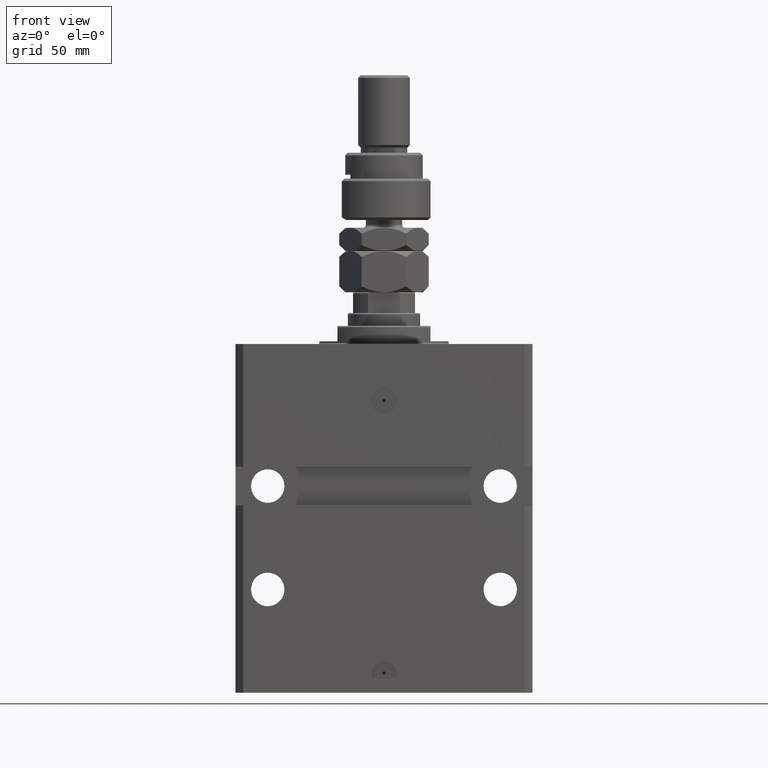
[diagram: clean part render]
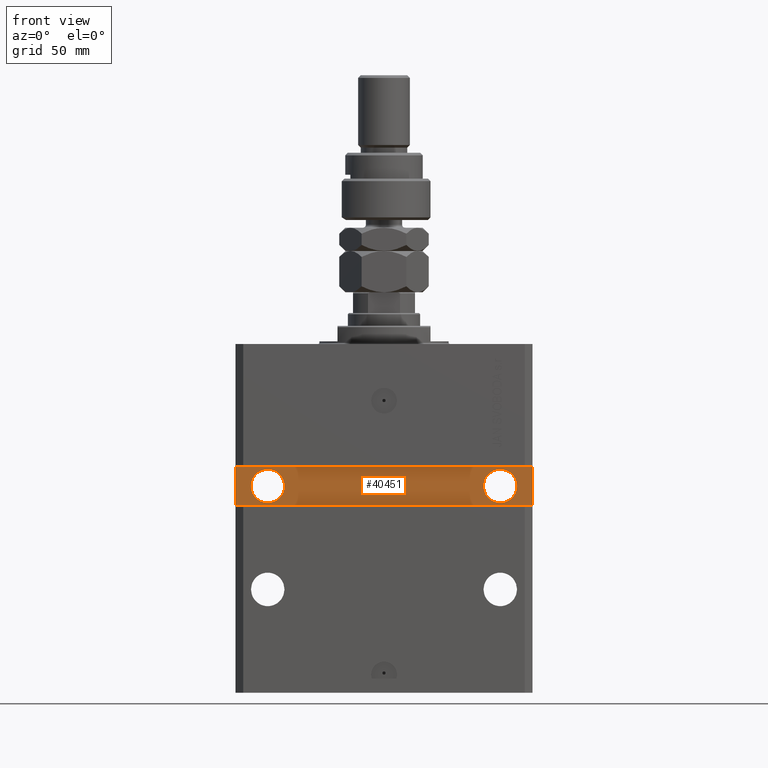
[diagram: same view with one face highlighted and labeled with its STEP entity id]
A machine part, front view. The second image highlights one B-rep face of the part: STEP entity #40451.
In plain terms, the highlighted planar face has unit normal (0, -1, 0).
Its self-contained STEP definition (entity closure, byte-faithful):
#926 = CARTESIAN_POINT ( 'NONE',  ( 57.50000000000000711, -39.99999999999998579, -62.49999999999999289 ) ) ;
#949 = AXIS2_PLACEMENT_3D ( 'NONE', #42046, #4856, #46024 ) ;
#957 = CARTESIAN_POINT ( 'NONE',  ( 38.50000000000001421, -39.99999999999999289, -55.00000000000000000 ) ) ;
#1121 = PLANE ( 'NONE',  #949 ) ;
#1801 = DIRECTION ( 'NONE',  ( 0.000000000000000000, 0.000000000000000000, -1.000000000000000000 ) ) ;
#2155 = VECTOR ( 'NONE', #1801, 1000.000000000000000 ) ;
#2756 = CIRCLE ( 'NONE', #12083, 6.499999999999999112 ) ;
#3078 = AXIS2_PLACEMENT_3D ( 'NONE', #16313, #12349, #41310 ) ;
#3589 = ORIENTED_EDGE ( 'NONE', *, *, #9337, .T. ) ;
#4856 = DIRECTION ( 'NONE',  ( 1.206764157201257045E-16, -1.000000000000000000, 0.000000000000000000 ) ) ;
#5056 = EDGE_CURVE ( 'NONE', #26156, #13375, #23292, .T. ) ;
#5169 = LINE ( 'NONE', #926, #37608 ) ;
#5172 = VECTOR ( 'NONE', #16002, 1000.000000000000000 ) ;
#5740 = CARTESIAN_POINT ( 'NONE',  ( 51.50000000000001421, -39.99999999999999289, -55.00000000000000000 ) ) ;
#6996 = EDGE_CURVE ( 'NONE', #29725, #29697, #47995, .T. ) ;
#7050 = EDGE_CURVE ( 'NONE', #25292, #14015, #9256, .T. ) ;
#8570 = FACE_BOUND ( 'NONE', #13674, .T. ) ;
#8654 = EDGE_CURVE ( 'NONE', #29697, #29725, #9009, .T. ) ;
#8932 = VECTOR ( 'NONE', #20649, 1000.000000000000000 ) ;
#9009 = CIRCLE ( 'NONE', #3078, 6.499999999999999112 ) ;
#9256 = LINE ( 'NONE', #10302, #2155 ) ;
#9337 = EDGE_CURVE ( 'NONE', #11421, #25292, #45094, .T. ) ;
#9779 = DIRECTION ( 'NONE',  ( 7.680174481697266334E-17, -1.000000000000000000, 1.232595164407830946E-32 ) ) ;
#10302 = CARTESIAN_POINT ( 'NONE',  ( -57.50000000000000711, -40.00000000000000000, -47.50000000000000711 ) ) ;
#11421 = VERTEX_POINT ( 'NONE', #15107 ) ;
#12016 = CARTESIAN_POINT ( 'NONE',  ( -44.99999999999998579, -40.00000000000000000, -55.00000000000001421 ) ) ;
#12083 = AXIS2_PLACEMENT_3D ( 'NONE', #12016, #24521, #43931 ) ;
#12349 = DIRECTION ( 'NONE',  ( 7.680174481697266334E-17, -1.000000000000000000, 1.232595164407830946E-32 ) ) ;
#12557 = LINE ( 'NONE', #25051, #5172 ) ;
#13233 = EDGE_CURVE ( 'NONE', #13375, #26156, #2756, .T. ) ;
#13375 = VERTEX_POINT ( 'NONE', #18359 ) ;
#13674 = EDGE_LOOP ( 'NONE', ( #16509, #48251 ) ) ;
#13959 = EDGE_CURVE ( 'NONE', #14015, #49946, #12557, .T. ) ;
#14015 = VERTEX_POINT ( 'NONE', #21842 ) ;
#14264 = DIRECTION ( 'NONE',  ( 1.101411730780568590E-16, -1.000000000000000000, 0.000000000000000000 ) ) ;
#14281 = CARTESIAN_POINT ( 'NONE',  ( 45.00000000000001421, -39.99999999999999289, -55.00000000000000000 ) ) ;
#15107 = CARTESIAN_POINT ( 'NONE',  ( 57.50000000000000711, -39.99999999999998579, -47.49999999999998579 ) ) ;
#15645 = AXIS2_PLACEMENT_3D ( 'NONE', #31284, #14264, #19579 ) ;
#16002 = DIRECTION ( 'NONE',  ( 1.000000000000000000, 1.206764157201257045E-16, 6.033820786006285224E-17 ) ) ;
#16312 = ORIENTED_EDGE ( 'NONE', *, *, #18428, .T. ) ;
#16313 = CARTESIAN_POINT ( 'NONE',  ( 45.00000000000001421, -39.99999999999999289, -55.00000000000000000 ) ) ;
#16509 = ORIENTED_EDGE ( 'NONE', *, *, #13233, .F. ) ;
#18359 = CARTESIAN_POINT ( 'NONE',  ( -38.49999999999998579, -40.00000000000000000, -55.00000000000001421 ) ) ;
#18428 = EDGE_CURVE ( 'NONE', #49946, #11421, #5169, .T. ) ;
#19579 = DIRECTION ( 'NONE',  ( 1.000000000000000000, 0.000000000000000000, 0.000000000000000000 ) ) ;
#20649 = DIRECTION ( 'NONE',  ( -1.000000000000000000, -1.206764157201257045E-16, -1.810146235801885814E-16 ) ) ;
#21318 = ORIENTED_EDGE ( 'NONE', *, *, #6996, .F. ) ;
#21842 = CARTESIAN_POINT ( 'NONE',  ( -57.50000000000000711, -40.00000000000000000, -62.50000000000000000 ) ) ;
#22106 = ORIENTED_EDGE ( 'NONE', *, *, #13959, .T. ) ;
#23292 = CIRCLE ( 'NONE', #15645, 6.499999999999999112 ) ;
#24521 = DIRECTION ( 'NONE',  ( 1.101411730780568590E-16, -1.000000000000000000, 0.000000000000000000 ) ) ;
#25051 = CARTESIAN_POINT ( 'NONE',  ( -57.50000000000000711, -40.00000000000000000, -62.50000000000000000 ) ) ;
#25070 = FACE_OUTER_BOUND ( 'NONE', #28058, .T. ) ;
#25082 = AXIS2_PLACEMENT_3D ( 'NONE', #14281, #9779, #25745 ) ;
#25292 = VERTEX_POINT ( 'NONE', #44761 ) ;
#25646 = DIRECTION ( 'NONE',  ( 0.000000000000000000, 0.000000000000000000, 1.000000000000000000 ) ) ;
#25745 = DIRECTION ( 'NONE',  ( 1.000000000000000000, 0.000000000000000000, 0.000000000000000000 ) ) ;
#26156 = VERTEX_POINT ( 'NONE', #33200 ) ;
#27228 = ORIENTED_EDGE ( 'NONE', *, *, #7050, .T. ) ;
#28058 = EDGE_LOOP ( 'NONE', ( #22106, #16312, #3589, #27228 ) ) ;
#28106 = CARTESIAN_POINT ( 'NONE',  ( 57.50000000000000711, -39.99999999999998579, -47.49999999999998579 ) ) ;
#29697 = VERTEX_POINT ( 'NONE', #957 ) ;
#29725 = VERTEX_POINT ( 'NONE', #5740 ) ;
#29812 = FACE_BOUND ( 'NONE', #37185, .T. ) ;
#30137 = CARTESIAN_POINT ( 'NONE',  ( 57.50000000000000711, -39.99999999999998579, -62.49999999999999289 ) ) ;
#31284 = CARTESIAN_POINT ( 'NONE',  ( -44.99999999999998579, -40.00000000000000000, -55.00000000000001421 ) ) ;
#32998 = ORIENTED_EDGE ( 'NONE', *, *, #8654, .F. ) ;
#33200 = CARTESIAN_POINT ( 'NONE',  ( -51.49999999999998579, -40.00000000000000000, -55.00000000000001421 ) ) ;
#37185 = EDGE_LOOP ( 'NONE', ( #21318, #32998 ) ) ;
#37608 = VECTOR ( 'NONE', #25646, 1000.000000000000000 ) ;
#40451 = ADVANCED_FACE ( 'NONE', ( #29812, #8570, #25070 ), #1121, .T. ) ;
#41310 = DIRECTION ( 'NONE',  ( 1.000000000000000000, 0.000000000000000000, 0.000000000000000000 ) ) ;
#42046 = CARTESIAN_POINT ( 'NONE',  ( 4.842396851142260860E-15, -39.99999999999999289, 0.000000000000000000 ) ) ;
#43931 = DIRECTION ( 'NONE',  ( 1.000000000000000000, 0.000000000000000000, 0.000000000000000000 ) ) ;
#44761 = CARTESIAN_POINT ( 'NONE',  ( -57.50000000000000711, -40.00000000000000000, -47.50000000000000711 ) ) ;
#45094 = LINE ( 'NONE', #28106, #8932 ) ;
#46024 = DIRECTION ( 'NONE',  ( 1.000000000000000000, 1.206764157201257045E-16, 0.000000000000000000 ) ) ;
#47995 = CIRCLE ( 'NONE', #25082, 6.499999999999999112 ) ;
#48251 = ORIENTED_EDGE ( 'NONE', *, *, #5056, .F. ) ;
#49946 = VERTEX_POINT ( 'NONE', #30137 ) ;